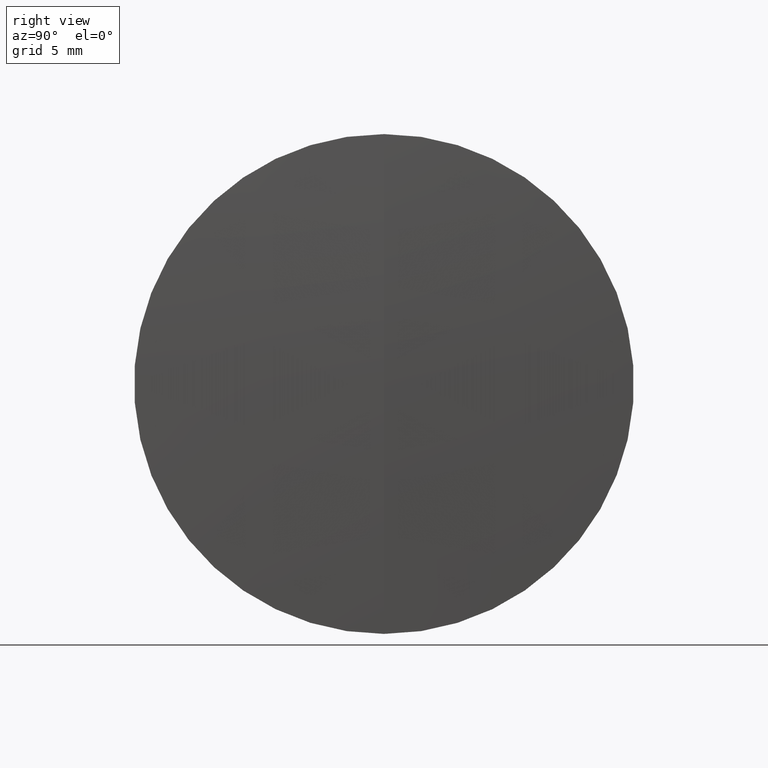
[diagram: clean part render]
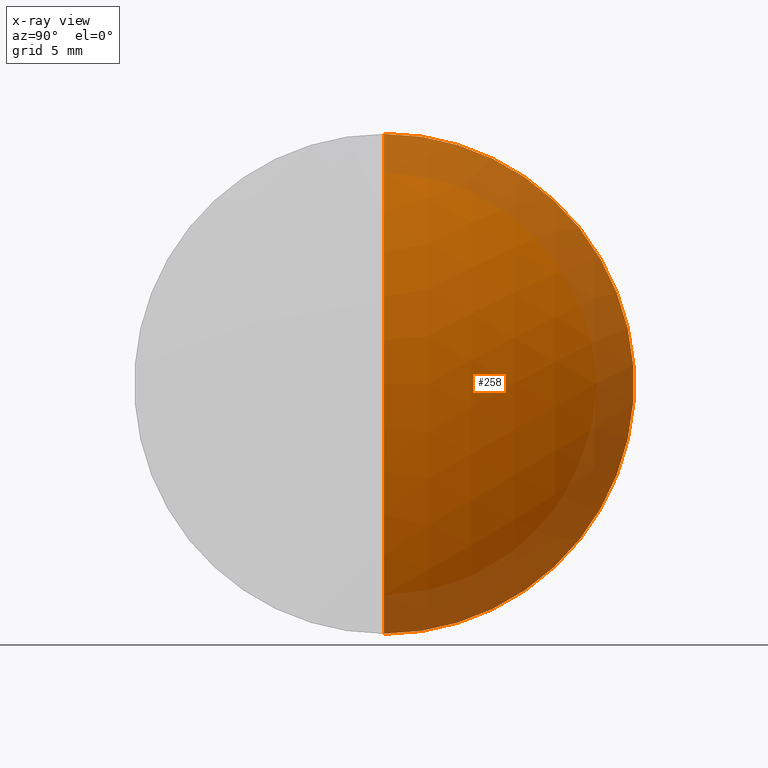
[diagram: x-ray — body ghosted, one internal face saturated and labeled with its STEP entity id]
A machine part, right view, then the same camera in x-ray: the body is ghosted and one INTERNAL B-rep face — a face not visible from any outside direction — is saturated and labeled: STEP entity #258.
In plain terms, the highlighted spherical surface has radius 27.9 mm.
Its self-contained STEP definition (entity closure, byte-faithful):
#4 = CIRCLE ( 'NONE', #156, 27.90000000000008400 ) ;
#25 = DIRECTION ( 'NONE',  ( 0.0000000000000000000, 0.0000000000000000000, 1.000000000000000000 ) ) ;
#28 = CIRCLE ( 'NONE', #95, 15.00000000000000000 ) ;
#33 = EDGE_CURVE ( 'NONE', #59, #333, #89, .T. ) ;
#59 = VERTEX_POINT ( 'NONE', #201 ) ;
#63 = DIRECTION ( 'NONE',  ( 0.0000000000000000000, 0.0000000000000000000, 1.000000000000000000 ) ) ;
#89 = CIRCLE ( 'NONE', #314, 27.90000000000008400 ) ;
#92 = EDGE_CURVE ( 'NONE', #122, #333, #28, .T. ) ;
#95 = AXIS2_PLACEMENT_3D ( 'NONE', #99, #285, #63 ) ;
#99 = CARTESIAN_POINT ( 'NONE',  ( 340.7316331292209400, 0.0000000000000000000, 0.0000000000000000000 ) ) ;
#122 = VERTEX_POINT ( 'NONE', #316 ) ;
#126 = DIRECTION ( 'NONE',  ( -0.0000000000000000000, 1.000000000000000000, 1.224646799147353200E-016 ) ) ;
#140 = EDGE_CURVE ( 'NONE', #59, #122, #4, .T. ) ;
#143 = CARTESIAN_POINT ( 'NONE',  ( 340.7316331292209400, 1.836970198721029600E-015, -15.00000000000000000 ) ) ;
#145 = DIRECTION ( 'NONE',  ( 0.0000000000000000000, 1.000000000000000000, 0.0000000000000000000 ) ) ;
#156 = AXIS2_PLACEMENT_3D ( 'NONE', #199, #202, #181 ) ;
#167 = AXIS2_PLACEMENT_3D ( 'NONE', #278, #145, #25 ) ;
#169 = ORIENTED_EDGE ( 'NONE', *, *, #33, .T. ) ;
#181 = DIRECTION ( 'NONE',  ( 0.0000000000000000000, 0.0000000000000000000, -1.000000000000000000 ) ) ;
#186 = SPHERICAL_SURFACE ( 'NONE', #167, 27.90000000000008400 ) ;
#199 = CARTESIAN_POINT ( 'NONE',  ( 317.2069652250824000, 0.0000000000000000000, 9.183549615799121200E-038 ) ) ;
#201 = CARTESIAN_POINT ( 'NONE',  ( 345.1069652250824900, 0.0000000000000000000, 1.708382284810562900E-015 ) ) ;
#202 = DIRECTION ( 'NONE',  ( 0.0000000000000000000, -1.000000000000000000, 0.0000000000000000000 ) ) ;
#203 = ORIENTED_EDGE ( 'NONE', *, *, #92, .F. ) ;
#222 = EDGE_LOOP ( 'NONE', ( #267, #169, #203 ) ) ;
#258 = ADVANCED_FACE ( 'NONE', ( #327 ), #186, .T. ) ;
#267 = ORIENTED_EDGE ( 'NONE', *, *, #140, .F. ) ;
#278 = CARTESIAN_POINT ( 'NONE',  ( 317.2069652250824000, 0.0000000000000000000, 9.183549615799121200E-038 ) ) ;
#285 = DIRECTION ( 'NONE',  ( -1.000000000000000000, -0.0000000000000000000, -0.0000000000000000000 ) ) ;
#308 = DIRECTION ( 'NONE',  ( 0.0000000000000000000, -1.224646799147353200E-016, 1.000000000000000000 ) ) ;
#314 = AXIS2_PLACEMENT_3D ( 'NONE', #318, #126, #308 ) ;
#316 = CARTESIAN_POINT ( 'NONE',  ( 340.7316331292209400, 0.0000000000000000000, 15.00000000000000000 ) ) ;
#318 = CARTESIAN_POINT ( 'NONE',  ( 317.2069652250824000, 0.0000000000000000000, 9.183549615799121200E-038 ) ) ;
#327 = FACE_OUTER_BOUND ( 'NONE', #222, .T. ) ;
#333 = VERTEX_POINT ( 'NONE', #143 ) ;